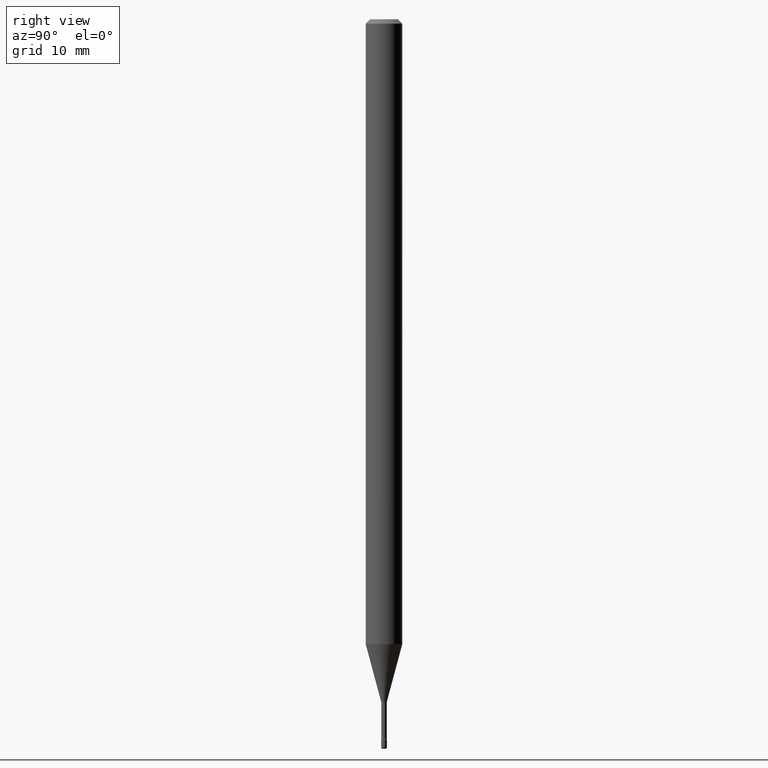
[diagram: clean part render]
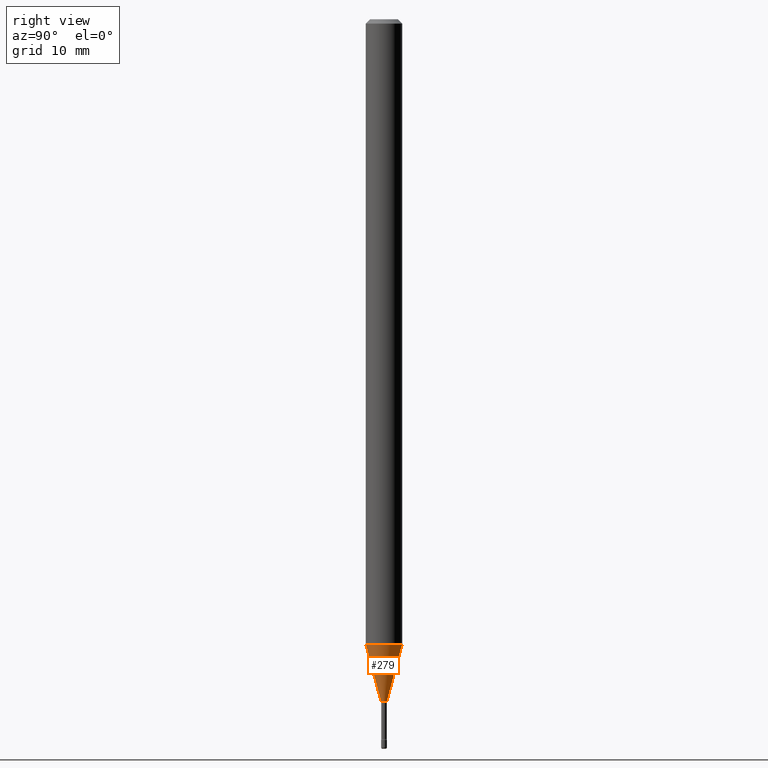
[diagram: same view with one face highlighted and labeled with its STEP entity id]
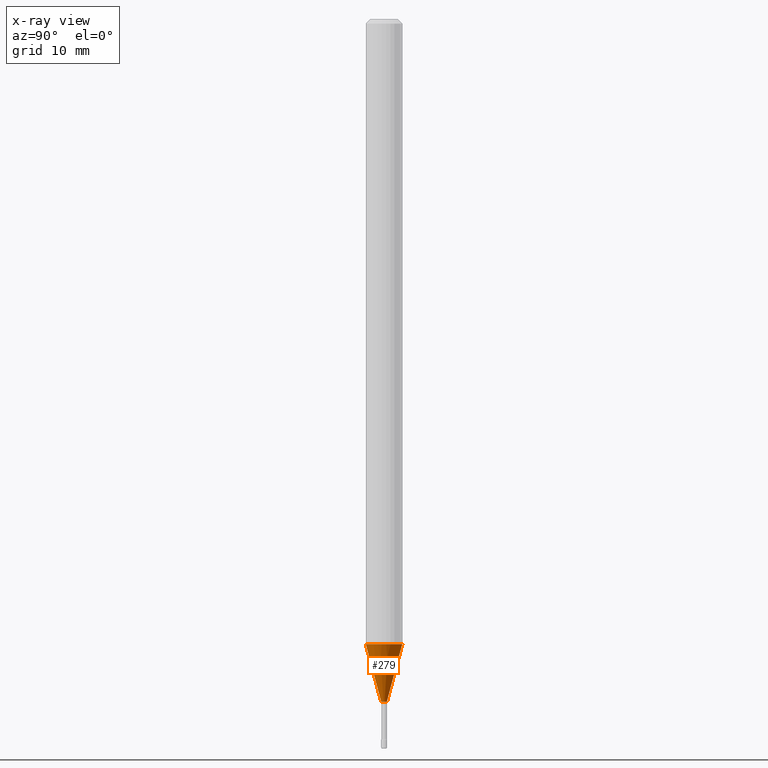
[diagram: x-ray of the same camera — body ghosted, the highlighted face saturated]
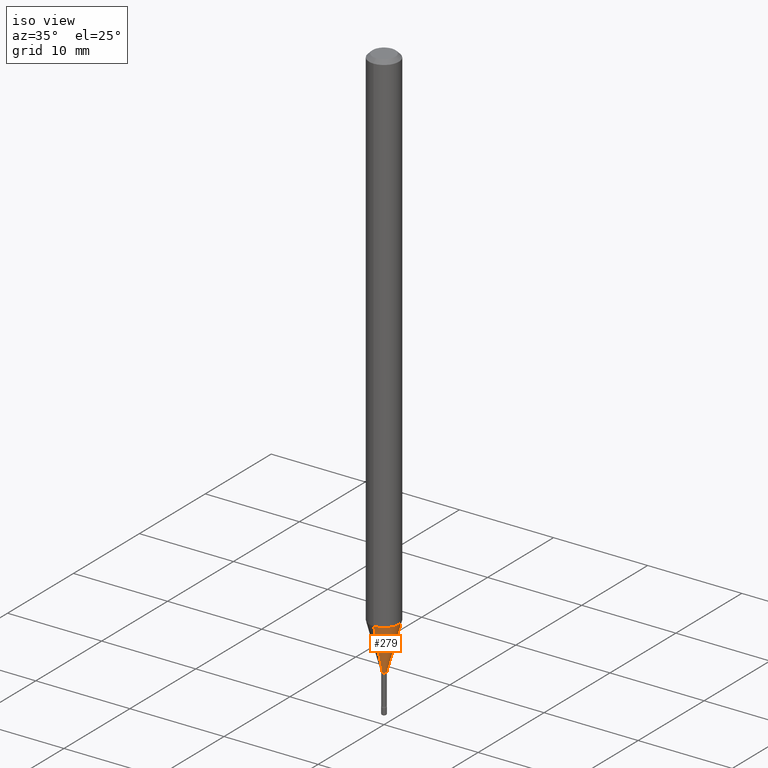
[diagram: same view with one face highlighted and labeled with its STEP entity id]
A machine part, right view. The second image highlights one B-rep face of the part: STEP entity #279.
The next image is the same camera in x-ray: the body ghosted, the highlighted face saturated — about 0% of this face is hidden behind the body in this view.
A second angle (iso view) of the same face is appended — the face is thin or edge-on in the first view.
In plain terms, the highlighted conical surface has half-angle 15 deg.
Its self-contained STEP definition (entity closure, byte-faithful):
#4 = EDGE_CURVE ( 'NONE', #62, #540, #100, .T. ) ;
#32 = VECTOR ( 'NONE', #269, 39.37007874015748854 ) ;
#42 = ORIENTED_EDGE ( 'NONE', *, *, #295, .T. ) ;
#46 = CARTESIAN_POINT ( 'NONE',  ( -4.364351673553393088E-16, -0.06250000000000748013, -2.141828102118092936 ) ) ;
#62 = VERTEX_POINT ( 'NONE', #369 ) ;
#72 = AXIS2_PLACEMENT_3D ( 'NONE', #234, #400, #362 ) ;
#79 = AXIS2_PLACEMENT_3D ( 'NONE', #500, #264, #450 ) ;
#100 = LINE ( 'NONE', #505, #32 ) ;
#148 = VERTEX_POINT ( 'NONE', #318 ) ;
#158 = CARTESIAN_POINT ( 'NONE',  ( 7.042269065260616487E-17, 0.009911112605655818600, -2.338092501787273125 ) ) ;
#234 = CARTESIAN_POINT ( 'NONE',  ( 5.717697089094048605E-29, -8.163456732565237736E-15, -2.338092501787273125 ) ) ;
#260 = ORIENTED_EDGE ( 'NONE', *, *, #328, .F. ) ;
#264 = DIRECTION ( 'NONE',  ( -2.445453755453795863E-29, 3.491502892347059895E-15, 1.000000000000000000 ) ) ;
#269 = DIRECTION ( 'NONE',  ( -1.807323732225328562E-15, -0.2588190451025179639, 0.9659258262890690894 ) ) ;
#279 = ADVANCED_FACE ( 'NONE', ( #311 ), #486, .T. ) ;
#295 = EDGE_CURVE ( 'NONE', #441, #148, #464, .T. ) ;
#297 = CIRCLE ( 'NONE', #471, 0.06250000000000000000 ) ;
#311 = FACE_OUTER_BOUND ( 'NONE', #348, .T. ) ;
#318 = CARTESIAN_POINT ( 'NONE',  ( 4.440892098501147796E-16, 0.06249999999999251293, -2.141828102118093380 ) ) ;
#328 = EDGE_CURVE ( 'NONE', #540, #148, #297, .T. ) ;
#346 = EDGE_CURVE ( 'NONE', #62, #441, #496, .T. ) ;
#348 = EDGE_LOOP ( 'NONE', ( #354, #42, #260, #402 ) ) ;
#354 = ORIENTED_EDGE ( 'NONE', *, *, #346, .T. ) ;
#362 = DIRECTION ( 'NONE',  ( -6.982962677686264344E-15, -1.000000000000000000, 0.000000000000000000 ) ) ;
#369 = CARTESIAN_POINT ( 'NONE',  ( -6.920892941964028521E-17, -0.009911112605672145817, -2.338092501787273125 ) ) ;
#400 = DIRECTION ( 'NONE',  ( -2.445453755453795863E-29, 3.491502892347059895E-15, 1.000000000000000000 ) ) ;
#402 = ORIENTED_EDGE ( 'NONE', *, *, #4, .F. ) ;
#414 = CARTESIAN_POINT ( 'NONE',  ( 2.572559502513606694E-16, 0.009911112605655818600, -2.338092501787273125 ) ) ;
#441 = VERTEX_POINT ( 'NONE', #414 ) ;
#450 = DIRECTION ( 'NONE',  ( -6.982962677686264344E-15, -1.000000000000000000, 0.000000000000000000 ) ) ;
#464 = LINE ( 'NONE', #158, #565 ) ;
#466 = DIRECTION ( 'NONE',  ( 1.839019923739598738E-15, 0.2588190451025247363, 0.9659258262890673130 ) ) ;
#471 = AXIS2_PLACEMENT_3D ( 'NONE', #564, #518, #519 ) ;
#486 = CONICAL_SURFACE ( 'NONE', #79, 0.009911112605663982209, 0.2617993877991500740 ) ;
#496 = CIRCLE ( 'NONE', #72, 0.009911112605663982209 ) ;
#500 = CARTESIAN_POINT ( 'NONE',  ( 5.717697089094048605E-29, -8.163456732565237736E-15, -2.338092501787273125 ) ) ;
#505 = CARTESIAN_POINT ( 'NONE',  ( -6.920892941964028521E-17, -0.009911112605672145817, -2.338092501787273125 ) ) ;
#518 = DIRECTION ( 'NONE',  ( -2.445453755453795863E-29, 3.491502892347059895E-15, 1.000000000000000000 ) ) ;
#519 = DIRECTION ( 'NONE',  ( -6.982962677686265922E-15, -1.000000000000000000, 4.370956789862821150E-15 ) ) ;
#540 = VERTEX_POINT ( 'NONE', #46 ) ;
#564 = CARTESIAN_POINT ( 'NONE',  ( 5.237741575861167467E-29, -7.478199013455536656E-15, -2.141828102118093380 ) ) ;
#565 = VECTOR ( 'NONE', #466, 39.37007874015748854 ) ;